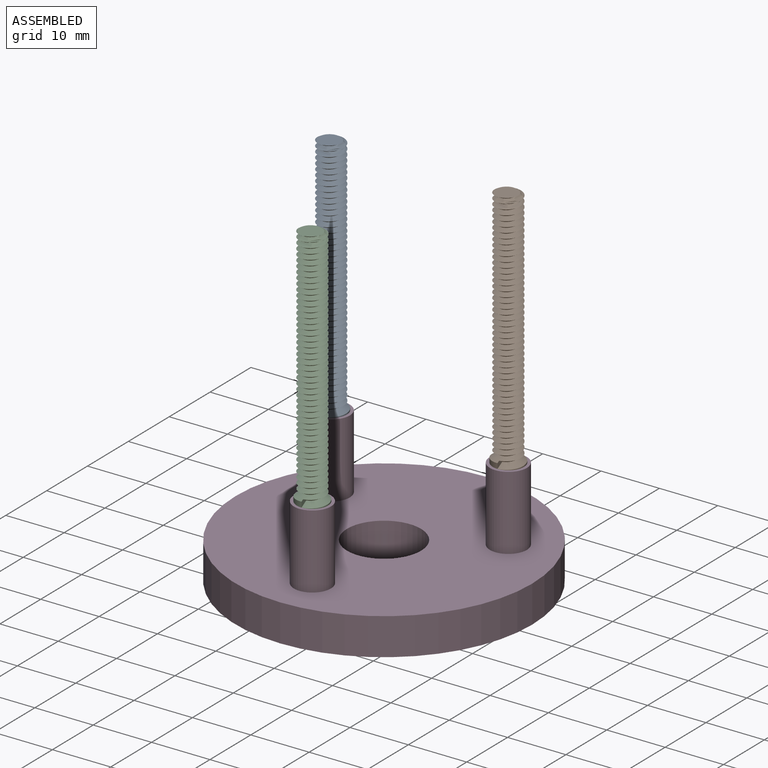
[diagram: assembled view]
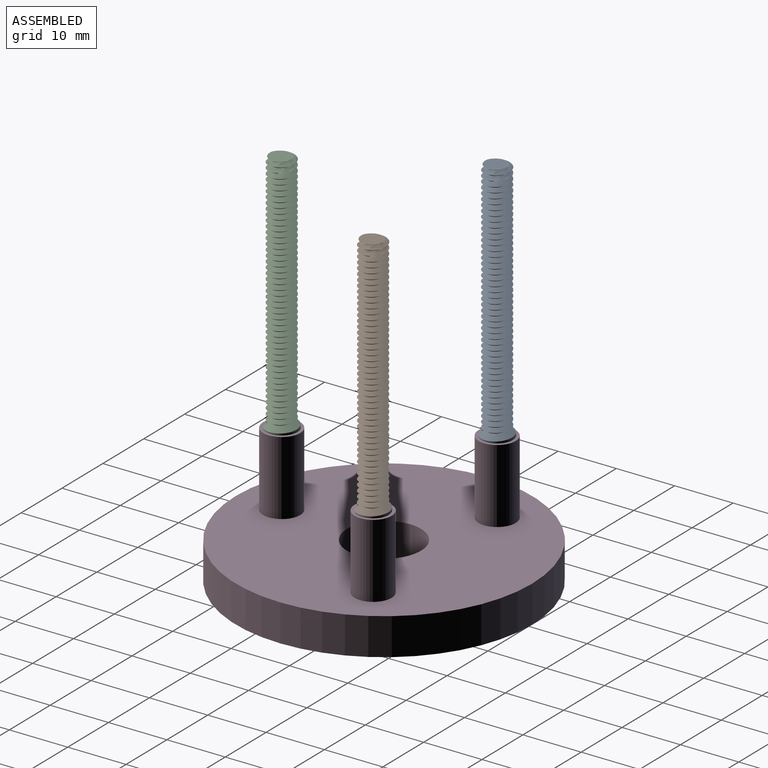
[diagram: assembled view, second angle]
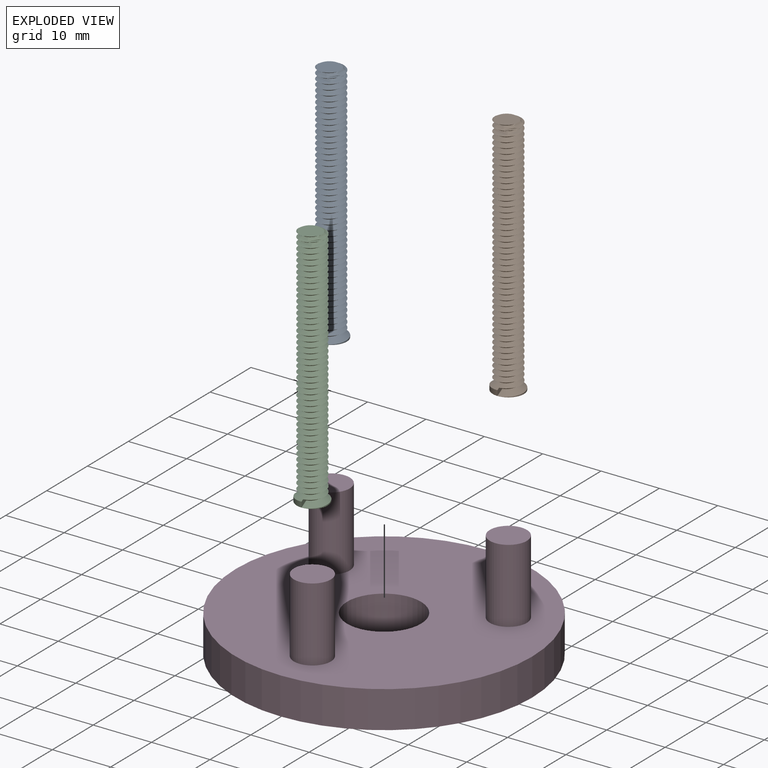
[diagram: exploded view]
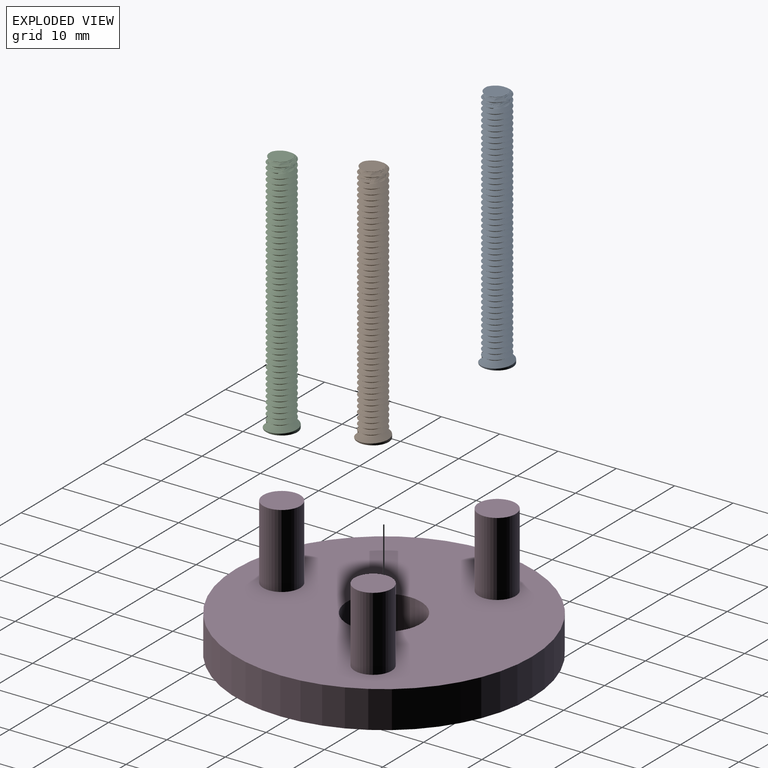
[diagram: exploded view, second angle]
ASSEMBLY  parts=4 mates=3
PART A: 7 faces, bbox 6.8x43.1x6 mm
  f0: cylinder r=2.67mm len=5.33mm, axis (0,1,0), area 7.6mm2, adj f1,f4,f5
  f1: plane 5.33x5.33mm, normal (0,-1,0), area 22.3mm2, adj f0
  f2: bspline ~42.18x5.25mm, area 490.7mm2, adj f3,f4,f5,f6
  f3: bspline ~41.73x5.25mm, area 485.7mm2, adj f2,f4,f6
  f4: plane 1.18x1.13mm, normal (1,0,0), area 0.7mm2, adj f0,f2,f3,f5
  f5: bspline ~6.16x5.33mm, area 7mm2, adj f0,f2,f4
  f6: plane 4.45x4.44mm, normal (0,1,0), area 11.3mm2, adj f2,f3
PART B: same geometry as A
PART C: same geometry as A
PART D: 10 faces, bbox 50.8x50.8x19.1 mm
  f0: cylinder r=3.17mm len=12.7mm, axis (0,0,-1), area 253.4mm2, adj f1,f6
  f1: plane 6.35x6.35mm, normal (0,0,1), area 31.7mm2, adj f0
  f2: cylinder r=3.17mm len=12.7mm, axis (0,0,-1), area 253.4mm2, adj f3,f6
  f3: plane 6.35x6.35mm, normal (0,0,1), area 31.7mm2, adj f2
  f4: cylinder r=25.4mm len=50.8mm, axis (0,0,1), area 1013.4mm2, adj f5,f6
  f5: plane 50.8x50.8mm, normal (0,0,-1), area 1900.2mm2, adj f4,f9
  f6: plane 50.8x50.8mm, normal (0,0,1), area 1805.1mm2, adj f0,f2,f4,f8,f9
  f7: plane 6.35x6.35mm, normal (0,0,1), area 31.7mm2, adj f8
  f8: cylinder r=3.17mm len=12.7mm, axis (0,0,-1), area 253.4mm2, adj f6,f7
  f9: cylinder r=6.35mm len=12.7mm, axis (0,0,-1), area 253.4mm2, adj f5,f6
PLACE A rot(axis=(1,0,0),90deg) t=(-13.58,9.09,46.48)mm
PLACE B rot(axis=(1,0,0),90deg) t=(16.78,9.09,46.48)mm
PLACE C rot(axis=(1,0,0),90deg) t=(1.6,-17.2,46.48)mm
PLACE D t=(1.6,0.33,-8.13)mm
MATE fastened B.f0 <-> D.f8  axis (0,0,-1) through (16.78,9.09,4.57)mm
MATE fastened A.f0 <-> D.f0  axis (0,0,-1) through (-13.58,9.09,4.57)mm
MATE fastened C.f0 <-> D.f2  axis (0,0,-1) through (1.6,-17.2,4.57)mm
